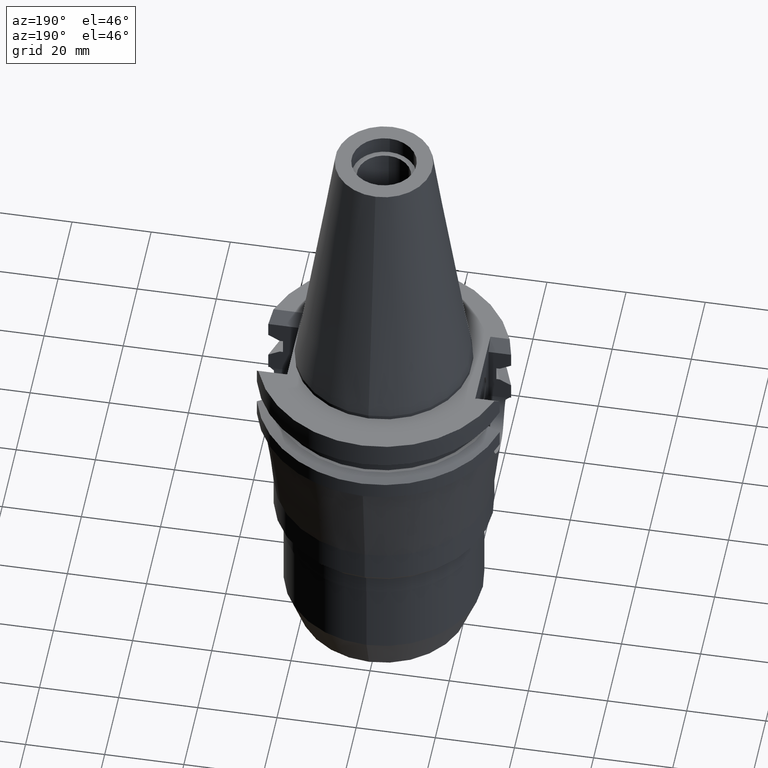
[diagram: clean part render]
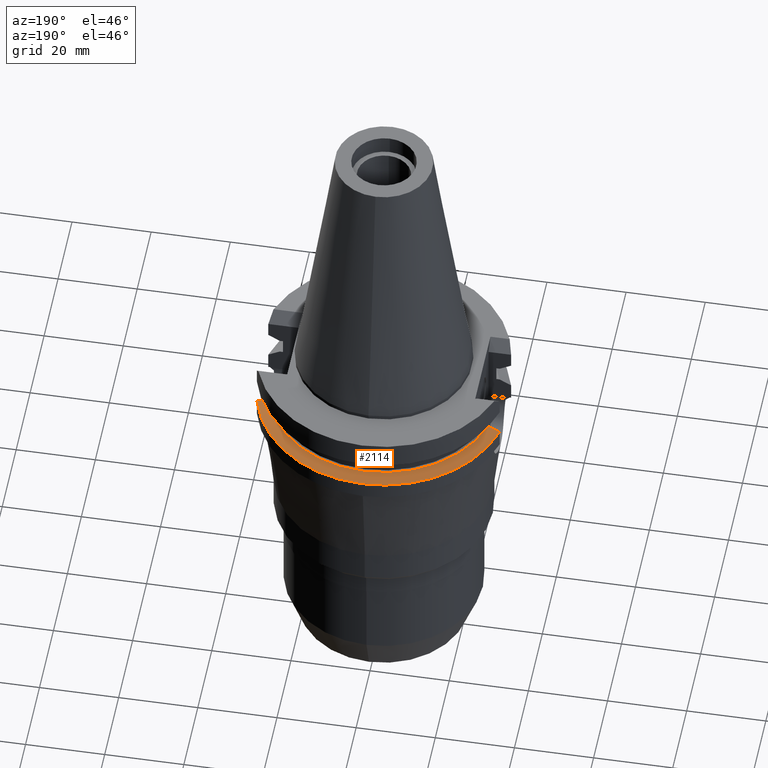
[diagram: same view with one face highlighted and labeled with its STEP entity id]
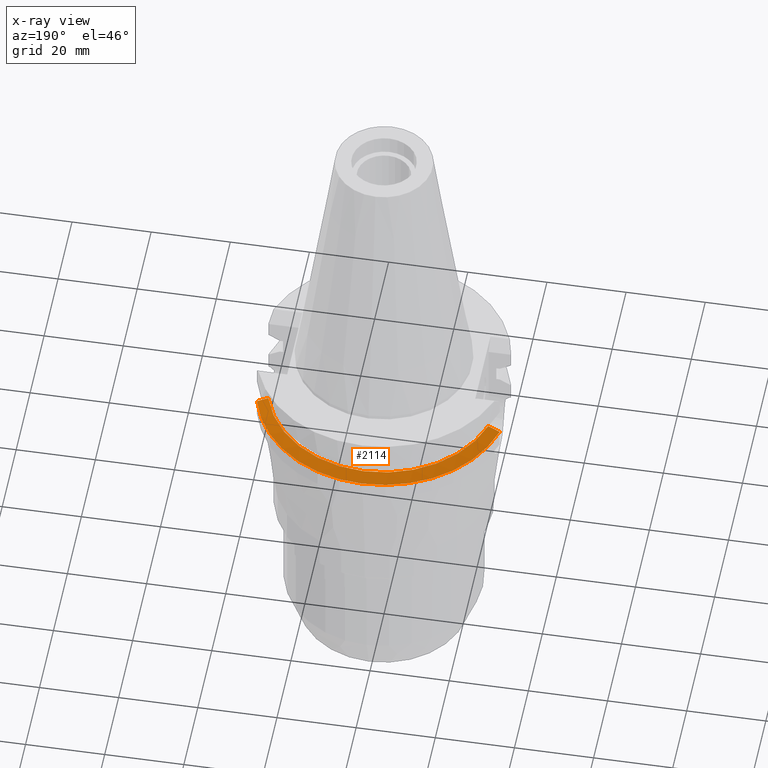
[diagram: x-ray of the same camera — body ghosted, the highlighted face saturated]
A machine part, auxiliary view. The second image highlights one B-rep face of the part: STEP entity #2114.
The next image is the same camera in x-ray: the body ghosted, the highlighted face saturated — about 0% of this face is hidden behind the body in this view.
In plain terms, the highlighted conical surface has half-angle 60 deg.
Its self-contained STEP definition (entity closure, byte-faithful):
#530=CARTESIAN_POINT('',(3.067550165946E1,8.189999874253E0,-1.465366564540E1));
#531=CARTESIAN_POINT('',(3.034685955090E1,8.189999874253E0,-1.447034535940E1));
#532=CARTESIAN_POINT('',(2.969465088348E1,8.189999973376E0,-1.410692875648E1));
#533=CARTESIAN_POINT('',(2.873155242099E1,8.190000281805E0,-1.357152156131E1));
#534=CARTESIAN_POINT('',(2.809960972051E1,8.189999360204E0,-1.322107741697E1));
#535=CARTESIAN_POINT('',(2.778617704743E1,8.189999360204E0,-1.30475E1));
#540=CARTESIAN_POINT('',(-2.778616453869E1,8.190000190909E0,-1.30475E1));
#541=CARTESIAN_POINT('',(-2.809960953957E1,8.190000190909E0,-1.322108423946E1));
#542=CARTESIAN_POINT('',(-2.873154722784E1,8.189999991768E0,-1.357151584018E1));
#543=CARTESIAN_POINT('',(-2.969464923449E1,8.189999742449E0,-1.410692517588E1));
#544=CARTESIAN_POINT('',(-3.034685342026E1,8.190000606440E0,-1.447034859514E1));
#545=CARTESIAN_POINT('',(-3.067550146398E1,8.190000606440E0,-1.465367218834E1));
#550=CARTESIAN_POINT('',(0.E0,1.055026073065E-14,-1.465366676908E1));
#551=DIRECTION('',(0.E0,0.E0,-1.E0));
#552=DIRECTION('',(-9.661575315241E-1,2.579527559055E-1,0.E0));
#553=AXIS2_PLACEMENT_3D('',#550,#551,#552);
#558=CARTESIAN_POINT('',(0.E0,1.055026073065E-14,-1.465366676908E1));
#559=DIRECTION('',(0.E0,0.E0,-1.E0));
#560=DIRECTION('',(0.E0,1.E0,0.E0));
#561=AXIS2_PLACEMENT_3D('',#558,#559,#560);
#589=CARTESIAN_POINT('',(0.E0,1.055026073065E-14,-1.30475E1));
#590=DIRECTION('',(0.E0,0.E0,-1.E0));
#591=DIRECTION('',(-9.592008904640E-1,2.827253998727E-1,0.E0));
#592=AXIS2_PLACEMENT_3D('',#589,#590,#591);
#597=CARTESIAN_POINT('',(0.E0,1.055026073065E-14,-1.30475E1));
#598=DIRECTION('',(0.E0,0.E0,-1.E0));
#599=DIRECTION('',(0.E0,1.E0,0.E0));
#600=AXIS2_PLACEMENT_3D('',#597,#598,#599);
#1731=CARTESIAN_POINT('',(2.778617704743E1,8.189999360204E0,-1.30475E1));
#1732=VERTEX_POINT('',#1731);
#1733=CARTESIAN_POINT('',(-2.778616453869E1,8.190000190909E0,-1.30475E1));
#1734=VERTEX_POINT('',#1733);
#1735=CARTESIAN_POINT('',(-3.537899182731E-14,2.896803755053E1,-1.30475E1));
#1736=VERTEX_POINT('',#1735);
#1739=VERTEX_POINT('',#530);
#1740=VERTEX_POINT('',#545);
#1741=CARTESIAN_POINT('',(0.E0,3.175E1,-1.465366676908E1));
#1742=VERTEX_POINT('',#1741);
#2099=CARTESIAN_POINT('',(0.E0,1.055026073065E-14,-1.385058338454E1));
#2100=DIRECTION('',(0.E0,0.E0,-1.E0));
#2101=DIRECTION('',(0.E0,-1.E0,0.E0));
#2102=AXIS2_PLACEMENT_3D('',#2099,#2100,#2101);
#2103=CONICAL_SURFACE('',#2102,3.035901877527E1,6.E1);
#2104=ORIENTED_EDGE('',*,*,#1930,.T.);
#2106=ORIENTED_EDGE('',*,*,#2105,.F.);
#2108=ORIENTED_EDGE('',*,*,#2107,.F.);
#2109=ORIENTED_EDGE('',*,*,#2047,.T.);
#2110=ORIENTED_EDGE('',*,*,#2091,.T.);
#2111=ORIENTED_EDGE('',*,*,#2089,.T.);
#2112=EDGE_LOOP('',(#2104,#2106,#2108,#2109,#2110,#2111));
#2113=FACE_OUTER_BOUND('',#2112,.F.);
#536=B_SPLINE_CURVE_WITH_KNOTS('',3,(#530,#531,#532,#533,#534,#535),
.UNSPECIFIED.,.F.,.F.,(4,1,1,4),(0.E0,3.333333333333E-1,6.666666666667E-1,1.E0),
.UNSPECIFIED.);
#546=B_SPLINE_CURVE_WITH_KNOTS('',3,(#540,#541,#542,#543,#544,#545),
.UNSPECIFIED.,.F.,.F.,(4,1,1,4),(0.E0,3.333333333333E-1,6.666666666667E-1,1.E0),
.UNSPECIFIED.);
#554=CIRCLE('',#553,3.175E1);
#562=CIRCLE('',#561,3.175E1);
#593=CIRCLE('',#592,2.896803755053E1);
#601=CIRCLE('',#600,2.896803755053E1);
#1930=EDGE_CURVE('',#1739,#1732,#536,.T.);
#2047=EDGE_CURVE('',#1734,#1740,#546,.T.);
#2089=EDGE_CURVE('',#1742,#1739,#562,.T.);
#2091=EDGE_CURVE('',#1740,#1742,#554,.T.);
#2105=EDGE_CURVE('',#1736,#1732,#601,.T.);
#2107=EDGE_CURVE('',#1734,#1736,#593,.T.);
#2114=ADVANCED_FACE('',(#2113),#2103,.T.);